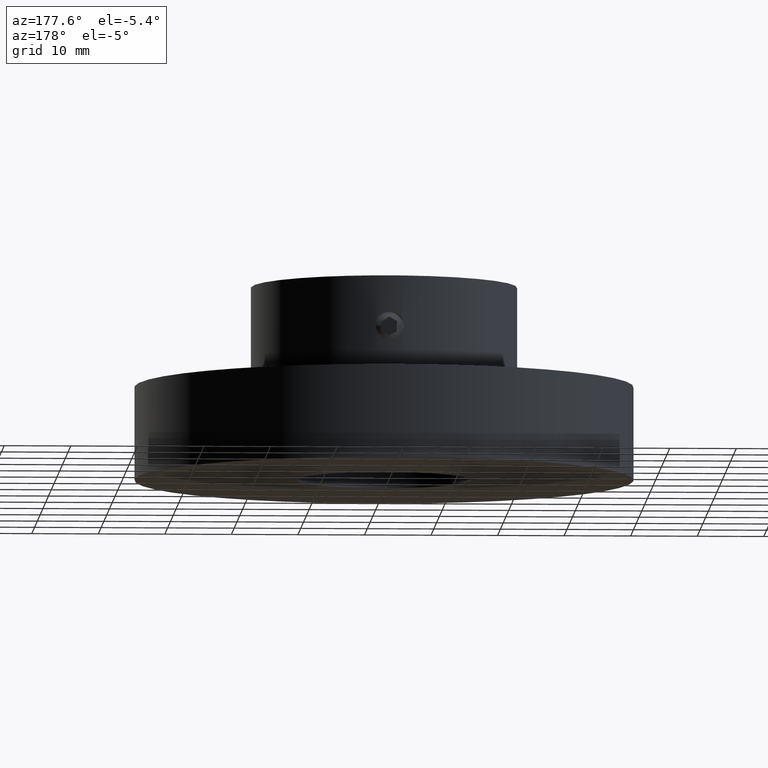
[diagram: clean part render]
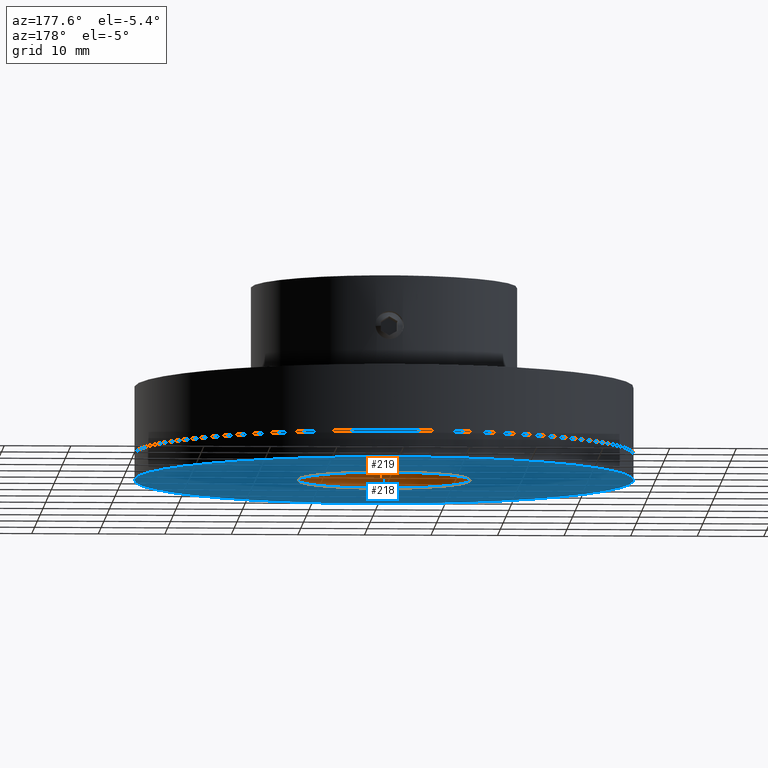
[diagram: same view with the hole feature highlighted: cylindrical wall and planar end face, labeled with their STEP entity ids]
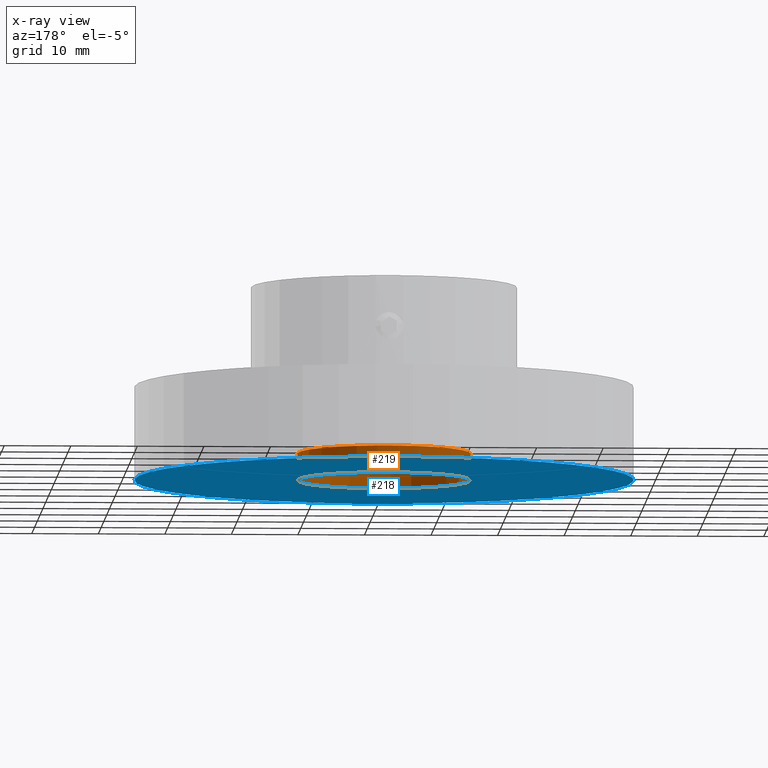
[diagram: x-ray of the same camera — body ghosted, the hole faces saturated]
A machine part, auxiliary view. The highlighted faces form one hole feature of diameter 26 mm: the cylindrical wall (entity #219, orange) and its adjacent planar end face (entity #218, blue) — they share a circular edge in the B-rep.
The next image is the same camera in x-ray (body ghosted, the hole faces saturated) — the bore reads through the body.
Wall:
#219 = ADVANCED_FACE( '', ( #256, #257 ), #258, .F. );
#256 = FACE_OUTER_BOUND( '', #328, .T. );
#257 = FACE_OUTER_BOUND( '', #329, .T. );
#258 = CYLINDRICAL_SURFACE( '', #330, 13.0000000000000 );
#328 = EDGE_LOOP( '', ( #406 ) );
#329 = EDGE_LOOP( '', ( #407 ) );
#330 = AXIS2_PLACEMENT_3D( '', #408, #409, #410 );
#406 = ORIENTED_EDGE( '', *, *, #564, .F. );
#407 = ORIENTED_EDGE( '', *, *, #566, .F. );
#408 = CARTESIAN_POINT( '', ( 3.46944695195361E-015, 0.000000000000000, 9.00000000000000 ) );
#409 = DIRECTION( '', ( 0.000000000000000, -0.000000000000000, 1.00000000000000 ) );
#410 = DIRECTION( '', ( -1.00000000000000, 0.000000000000000, 0.000000000000000 ) );
#564 = EDGE_CURVE( '', #611, #611, #612, .F. );
#566 = EDGE_CURVE( '', #615, #615, #616, .T. );
#611 = VERTEX_POINT( '', #691 );
#612 = CIRCLE( '', #692, 13.0000000000000 );
#615 = VERTEX_POINT( '', #695 );
#616 = CIRCLE( '', #696, 13.0000000000000 );
#691 = CARTESIAN_POINT( '', ( 13.0000000000000, 0.000000000000000, 4.00000000000000 ) );
#692 = AXIS2_PLACEMENT_3D( '', #936, #937, #938 );
#695 = CARTESIAN_POINT( '', ( 13.0000000000000, 0.000000000000000, 0.000000000000000 ) );
#696 = AXIS2_PLACEMENT_3D( '', #942, #943, #944 );
#936 = CARTESIAN_POINT( '', ( 3.46944695195361E-015, 0.000000000000000, 4.00000000000000 ) );
#937 = DIRECTION( '', ( 0.000000000000000, 0.000000000000000, 1.00000000000000 ) );
#938 = DIRECTION( '', ( 1.00000000000000, 0.000000000000000, -0.000000000000000 ) );
#942 = CARTESIAN_POINT( '', ( 3.46944695195361E-015, 0.000000000000000, 0.000000000000000 ) );
#943 = DIRECTION( '', ( 0.000000000000000, 0.000000000000000, 1.00000000000000 ) );
#944 = DIRECTION( '', ( 1.00000000000000, 0.000000000000000, 0.000000000000000 ) );
End face:
#218 = ADVANCED_FACE( '', ( #253, #254 ), #255, .F. );
#253 = FACE_BOUND( '', #325, .T. );
#254 = FACE_OUTER_BOUND( '', #326, .T. );
#255 = PLANE( '', #327 );
#325 = EDGE_LOOP( '', ( #401 ) );
#326 = EDGE_LOOP( '', ( #402 ) );
#327 = AXIS2_PLACEMENT_3D( '', #403, #404, #405 );
#401 = ORIENTED_EDGE( '', *, *, #566, .T. );
#402 = ORIENTED_EDGE( '', *, *, #565, .F. );
#403 = CARTESIAN_POINT( '', ( 0.000000000000000, 0.000000000000000, 0.000000000000000 ) );
#404 = DIRECTION( '', ( 0.000000000000000, 0.000000000000000, 1.00000000000000 ) );
#405 = DIRECTION( '', ( 1.00000000000000, 0.000000000000000, 0.000000000000000 ) );
#565 = EDGE_CURVE( '', #613, #613, #614, .T. );
#566 = EDGE_CURVE( '', #615, #615, #616, .T. );
#613 = VERTEX_POINT( '', #693 );
#614 = CIRCLE( '', #694, 37.5000000000000 );
#615 = VERTEX_POINT( '', #695 );
#616 = CIRCLE( '', #696, 13.0000000000000 );
#693 = CARTESIAN_POINT( '', ( 37.5000000000000, 0.000000000000000, 0.000000000000000 ) );
#694 = AXIS2_PLACEMENT_3D( '', #939, #940, #941 );
#695 = CARTESIAN_POINT( '', ( 13.0000000000000, 0.000000000000000, 0.000000000000000 ) );
#696 = AXIS2_PLACEMENT_3D( '', #942, #943, #944 );
#939 = CARTESIAN_POINT( '', ( 0.000000000000000, 0.000000000000000, 0.000000000000000 ) );
#940 = DIRECTION( '', ( 0.000000000000000, 0.000000000000000, 1.00000000000000 ) );
#941 = DIRECTION( '', ( 1.00000000000000, 0.000000000000000, 0.000000000000000 ) );
#942 = CARTESIAN_POINT( '', ( 3.46944695195361E-015, 0.000000000000000, 0.000000000000000 ) );
#943 = DIRECTION( '', ( 0.000000000000000, 0.000000000000000, 1.00000000000000 ) );
#944 = DIRECTION( '', ( 1.00000000000000, 0.000000000000000, 0.000000000000000 ) );